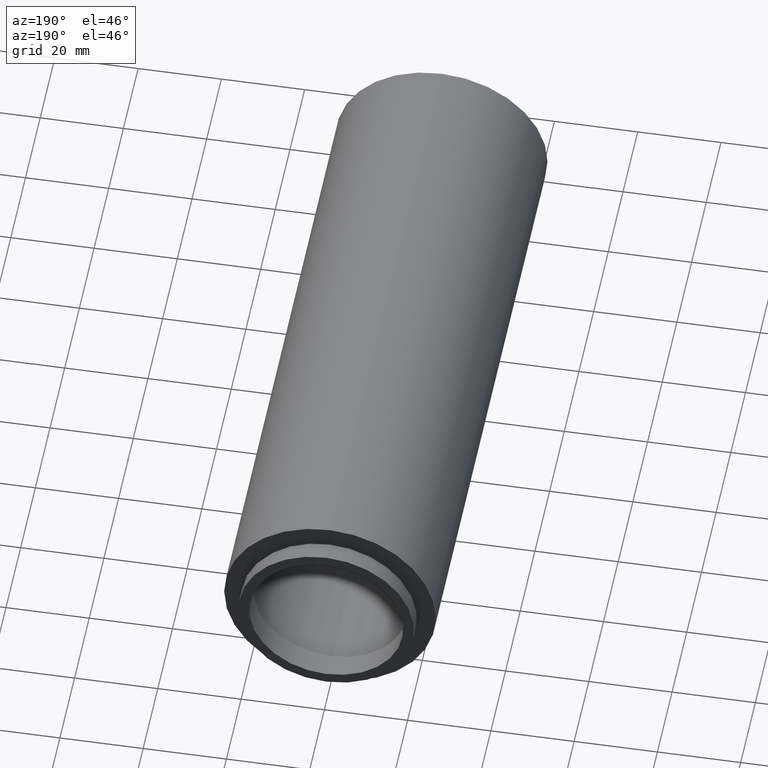
[diagram: clean part render]
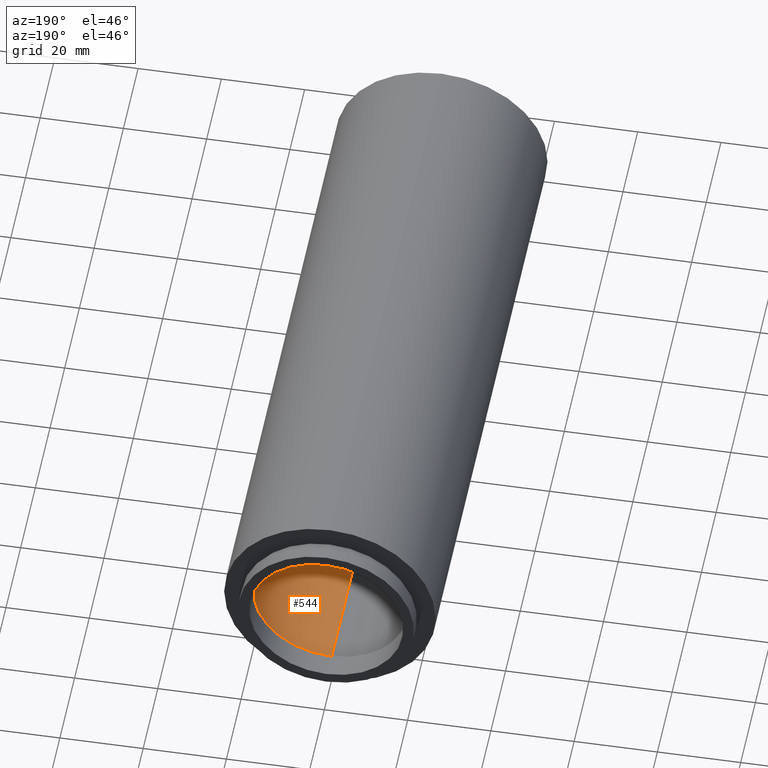
[diagram: same view with one face highlighted and labeled with its STEP entity id]
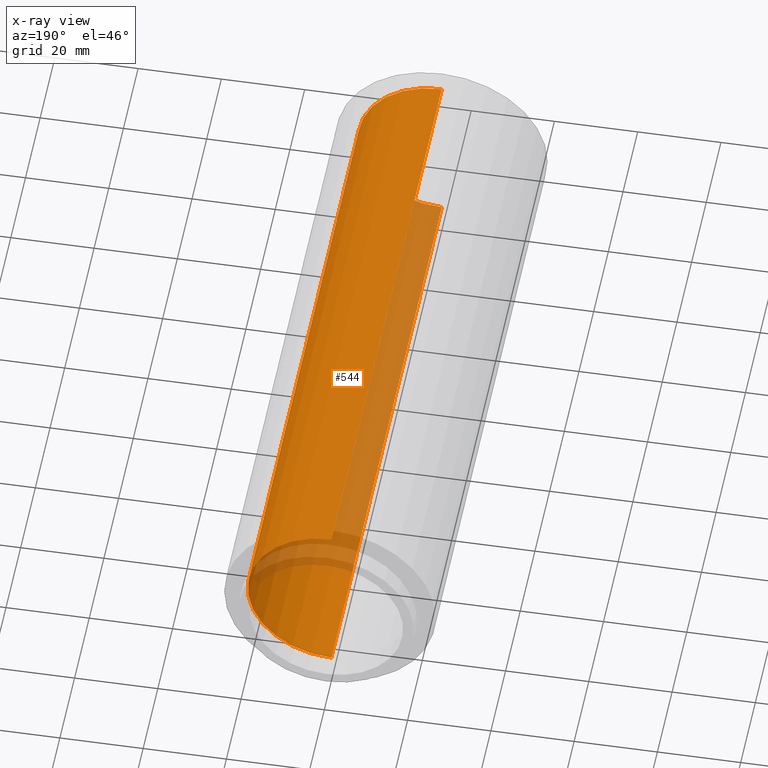
[diagram: x-ray of the same camera — body ghosted, the highlighted face saturated]
A machine part, auxiliary view. The second image highlights one B-rep face of the part: STEP entity #544.
The next image is the same camera in x-ray: the body ghosted, the highlighted face saturated — about 25% of this face is hidden behind the body in this view.
In plain terms, the highlighted cylindrical surface (partial cylindrical patch) has radius 20.1 mm, axis along (-0, 1, -0).
Its self-contained STEP definition (entity closure, byte-faithful):
#18 = VERTEX_POINT ( 'NONE', #23 ) ;
#23 = CARTESIAN_POINT ( 'NONE',  ( 2.461540066286182200E-015, 150.3999999999999800, -20.10000000000001900 ) ) ;
#40 = LINE ( 'NONE', #153, #408 ) ;
#71 = CYLINDRICAL_SURFACE ( 'NONE', #441, 20.10000000000001900 ) ;
#87 = VERTEX_POINT ( 'NONE', #399 ) ;
#88 = CARTESIAN_POINT ( 'NONE',  ( 0.0000000000000000000, -2.775557561562891400E-014, 0.0000000000000000000 ) ) ;
#100 = CARTESIAN_POINT ( 'NONE',  ( 0.0000000000000000000, 161.3761669434274500, 0.0000000000000000000 ) ) ;
#104 = EDGE_CURVE ( 'NONE', #258, #609, #304, .T. ) ;
#151 = ORIENTED_EDGE ( 'NONE', *, *, #104, .F. ) ;
#153 = CARTESIAN_POINT ( 'NONE',  ( 0.0000000000000000000, 161.3761669434274500, 20.10000000000001900 ) ) ;
#186 = DIRECTION ( 'NONE',  ( -0.0000000000000000000, 1.000000000000000000, -0.0000000000000000000 ) ) ;
#197 = DIRECTION ( 'NONE',  ( -0.0000000000000000000, 1.000000000000000000, -0.0000000000000000000 ) ) ;
#213 = LINE ( 'NONE', #349, #490 ) ;
#233 = DIRECTION ( 'NONE',  ( 0.0000000000000000000, 0.0000000000000000000, 1.000000000000000000 ) ) ;
#246 = CARTESIAN_POINT ( 'NONE',  ( 0.0000000000000000000, -2.775557561562891400E-014, 20.10000000000001900 ) ) ;
#258 = VERTEX_POINT ( 'NONE', #246 ) ;
#259 = AXIS2_PLACEMENT_3D ( 'NONE', #278, #186, #470 ) ;
#278 = CARTESIAN_POINT ( 'NONE',  ( 0.0000000000000000000, 150.3999999999999800, 0.0000000000000000000 ) ) ;
#304 = CIRCLE ( 'NONE', #485, 20.10000000000001900 ) ;
#331 = EDGE_CURVE ( 'NONE', #609, #18, #213, .T. ) ;
#349 = CARTESIAN_POINT ( 'NONE',  ( 2.461540066286182200E-015, 161.3761669434274500, -20.10000000000001900 ) ) ;
#382 = FACE_OUTER_BOUND ( 'NONE', #393, .T. ) ;
#388 = DIRECTION ( 'NONE',  ( -0.0000000000000000000, 1.000000000000000000, -0.0000000000000000000 ) ) ;
#393 = EDGE_LOOP ( 'NONE', ( #529, #151, #614, #540 ) ) ;
#399 = CARTESIAN_POINT ( 'NONE',  ( 0.0000000000000000000, 150.3999999999999800, 20.10000000000001900 ) ) ;
#408 = VECTOR ( 'NONE', #426, 1000.000000000000000 ) ;
#423 = CIRCLE ( 'NONE', #259, 20.10000000000001900 ) ;
#426 = DIRECTION ( 'NONE',  ( -0.0000000000000000000, 1.000000000000000000, -0.0000000000000000000 ) ) ;
#431 = EDGE_CURVE ( 'NONE', #87, #18, #423, .T. ) ;
#441 = AXIS2_PLACEMENT_3D ( 'NONE', #100, #197, #233 ) ;
#449 = DIRECTION ( 'NONE',  ( -0.0000000000000000000, 1.000000000000000000, -0.0000000000000000000 ) ) ;
#470 = DIRECTION ( 'NONE',  ( 0.0000000000000000000, 0.0000000000000000000, 1.000000000000000000 ) ) ;
#485 = AXIS2_PLACEMENT_3D ( 'NONE', #88, #449, #499 ) ;
#490 = VECTOR ( 'NONE', #388, 1000.000000000000000 ) ;
#499 = DIRECTION ( 'NONE',  ( 0.0000000000000000000, 0.0000000000000000000, 1.000000000000000000 ) ) ;
#529 = ORIENTED_EDGE ( 'NONE', *, *, #331, .F. ) ;
#540 = ORIENTED_EDGE ( 'NONE', *, *, #431, .T. ) ;
#544 = ADVANCED_FACE ( 'NONE', ( #382 ), #71, .F. ) ;
#552 = EDGE_CURVE ( 'NONE', #258, #87, #40, .T. ) ;
#609 = VERTEX_POINT ( 'NONE', #623 ) ;
#614 = ORIENTED_EDGE ( 'NONE', *, *, #552, .T. ) ;
#623 = CARTESIAN_POINT ( 'NONE',  ( 2.461540066286182200E-015, -2.775557561562891400E-014, -20.10000000000001900 ) ) ;